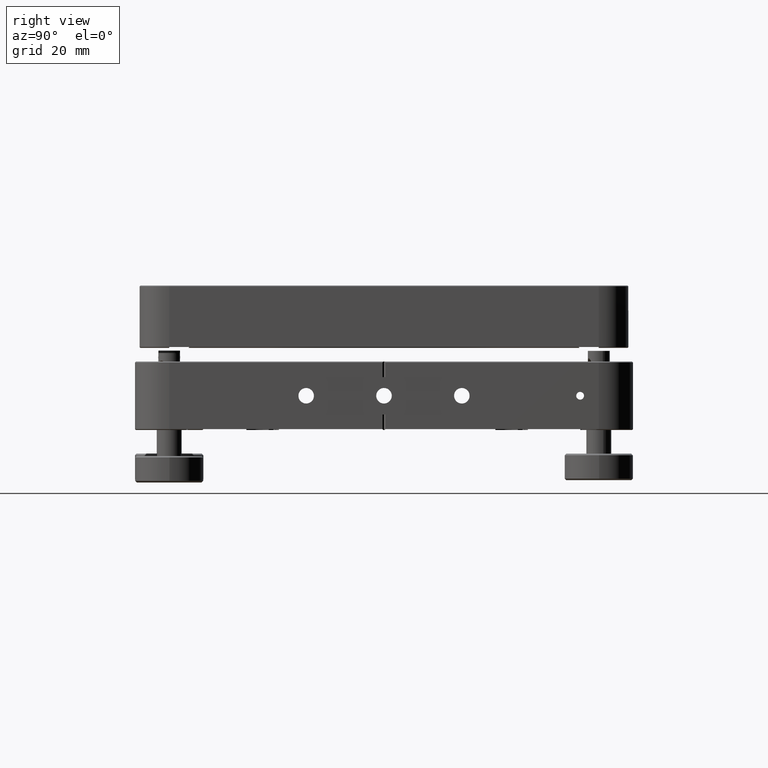
[diagram: clean part render]
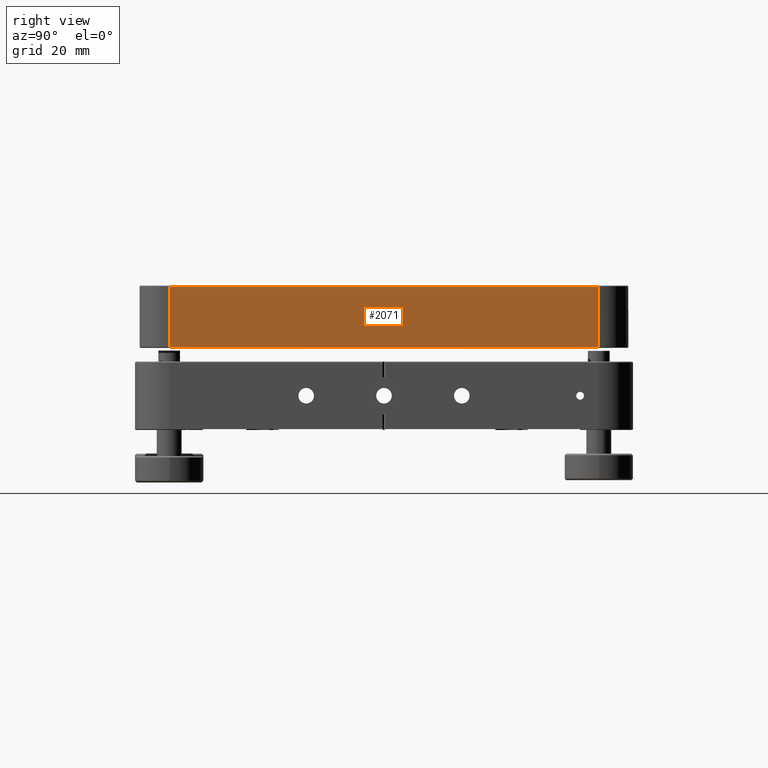
[diagram: same view with one face highlighted and labeled with its STEP entity id]
A machine part, right view. The second image highlights one B-rep face of the part: STEP entity #2071.
In plain terms, the highlighted planar face has unit normal (-1, -0, 0).
Its self-contained STEP definition (entity closure, byte-faithful):
#567 = DIRECTION ( 'NONE',  ( -6.383782391594642219E-16, 1.000000000000000000, -1.916961490288833203E-36 ) ) ;
#1406 = ORIENTED_EDGE ( 'NONE', *, *, #6079, .T. ) ;
#2071 = ADVANCED_FACE ( 'NONE', ( #5485 ), #3984, .F. ) ;
#2432 = CARTESIAN_POINT ( 'NONE',  ( 78.50000000000055422, -69.00000000000054001, 35.14949493661170266 ) ) ;
#2881 = CARTESIAN_POINT ( 'NONE',  ( 78.50000000000046896, 69.00000000000055422, 35.14949493661170266 ) ) ;
#3978 = VERTEX_POINT ( 'NONE', #5773 ) ;
#3984 = PLANE ( 'NONE',  #5636 ) ;
#4010 = ORIENTED_EDGE ( 'NONE', *, *, #10533, .T. ) ;
#4171 = VERTEX_POINT ( 'NONE', #2881 ) ;
#4190 = DIRECTION ( 'NONE',  ( -1.460576560598800264E-21, 4.173910643867654953E-36, -1.000000000000000000 ) ) ;
#4516 = LINE ( 'NONE', #7732, #14190 ) ;
#4706 = DIRECTION ( 'NONE',  ( -1.000000000000000000, -6.383782391594642219E-16, 1.460576560598800264E-21 ) ) ;
#5485 = FACE_OUTER_BOUND ( 'NONE', #5975, .T. ) ;
#5636 = AXIS2_PLACEMENT_3D ( 'NONE', #6123, #4706, #8949 ) ;
#5773 = CARTESIAN_POINT ( 'NONE',  ( 78.50000000000055422, -69.00000000000054001, 15.64949493661167423 ) ) ;
#5975 = EDGE_LOOP ( 'NONE', ( #4010, #16570, #1406, #6477 ) ) ;
#6079 = EDGE_CURVE ( 'NONE', #14914, #4171, #7830, .T. ) ;
#6123 = CARTESIAN_POINT ( 'NONE',  ( 78.50000000000056843, -78.50000000000054001, 35.39949493661167423 ) ) ;
#6411 = CARTESIAN_POINT ( 'NONE',  ( 78.50000000000055422, -69.00000000000054001, 35.14949493661170266 ) ) ;
#6477 = ORIENTED_EDGE ( 'NONE', *, *, #15516, .T. ) ;
#7717 = CARTESIAN_POINT ( 'NONE',  ( 78.50000000000046896, 69.00000000000055422, 35.39949493661167423 ) ) ;
#7732 = CARTESIAN_POINT ( 'NONE',  ( 78.50000000000056843, -78.50000000000054001, 15.64949493661167423 ) ) ;
#7830 = LINE ( 'NONE', #7717, #8206 ) ;
#8206 = VECTOR ( 'NONE', #17267, 1000.000000000000000 ) ;
#8949 = DIRECTION ( 'NONE',  ( 1.460576560598800264E-21, -4.173910643867654953E-36, 1.000000000000000000 ) ) ;
#9332 = LINE ( 'NONE', #2432, #12957 ) ;
#10533 = EDGE_CURVE ( 'NONE', #14630, #3978, #18522, .T. ) ;
#10747 = DIRECTION ( 'NONE',  ( 6.383782391594642219E-16, -1.000000000000000000, 1.916961490288833203E-36 ) ) ;
#11579 = CARTESIAN_POINT ( 'NONE',  ( 78.50000000000046896, 69.00000000000055422, 15.64949493661167423 ) ) ;
#12957 = VECTOR ( 'NONE', #10747, 1000.000000000000000 ) ;
#14190 = VECTOR ( 'NONE', #567, 1000.000000000000000 ) ;
#14630 = VERTEX_POINT ( 'NONE', #6411 ) ;
#14914 = VERTEX_POINT ( 'NONE', #11579 ) ;
#15401 = EDGE_CURVE ( 'NONE', #3978, #14914, #4516, .T. ) ;
#15516 = EDGE_CURVE ( 'NONE', #4171, #14630, #9332, .T. ) ;
#16570 = ORIENTED_EDGE ( 'NONE', *, *, #15401, .T. ) ;
#17103 = CARTESIAN_POINT ( 'NONE',  ( 78.50000000000055422, -69.00000000000054001, 35.39949493661167423 ) ) ;
#17213 = VECTOR ( 'NONE', #4190, 1000.000000000000000 ) ;
#17267 = DIRECTION ( 'NONE',  ( 1.460576560598800264E-21, -4.173910643867654953E-36, 1.000000000000000000 ) ) ;
#18522 = LINE ( 'NONE', #17103, #17213 ) ;